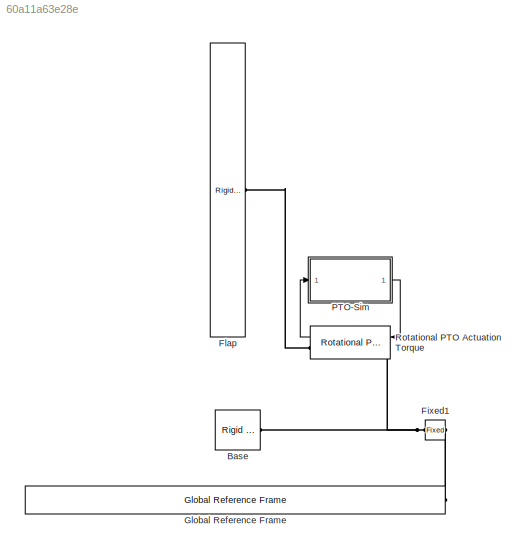
MODEL slx_60a11a63e28e
KIND model
CONFIG AbsTol = auto
CONFIG EnableMultiTasking = on
CONFIG FixedStep = 0.01
CONFIG MaxStep = 0.01
CONFIG MinStep = auto
CONFIG RelTol = 1e-3
CONFIG SampleTimeConstraint = Unconstrained
CONFIG SolverName = ode4
CONFIG StartTime = 0
CONFIG StopTime = 400
BLOCK [Reference] Base  REF=WECSim_Lib_Body_Elements/Rigid Body
  AttributesFormatString = %<body>
  Ports = [0, 0, 0, 0, 0, 0, 1]
  SourceBlock = WECSim_Lib_Body_Elements/Rigid Body
  SourceType = Rigid Body
BLOCK [Reference] Fixed1  REF=WECSim_Lib_Constraints/Fixed
  AttributesFormatString = %<constraint>
  NameLocation = top
  Ports = [0, 0, 0, 0, 0, 1, 1]
  SourceBlock = WECSim_Lib_Constraints/Fixed
  SourceType = Constraints
BLOCK [Reference] Flap  REF=WECSim_Lib_Body_Elements/Rigid Body
  AttributesFormatString = %<body>
  Ports = [0, 0, 0, 0, 0, 0, 1]
  SourceBlock = WECSim_Lib_Body_Elements/Rigid Body
  SourceType = Rigid Body
BLOCK [Reference] Global Reference Frame  REF=WECSim_Lib_Frames/Global Reference Frame
  Ports = [0, 0, 0, 0, 0, 0, 1]
  SourceBlock = WECSim_Lib_Frames/Global Reference Frame
  SourceType = Frames
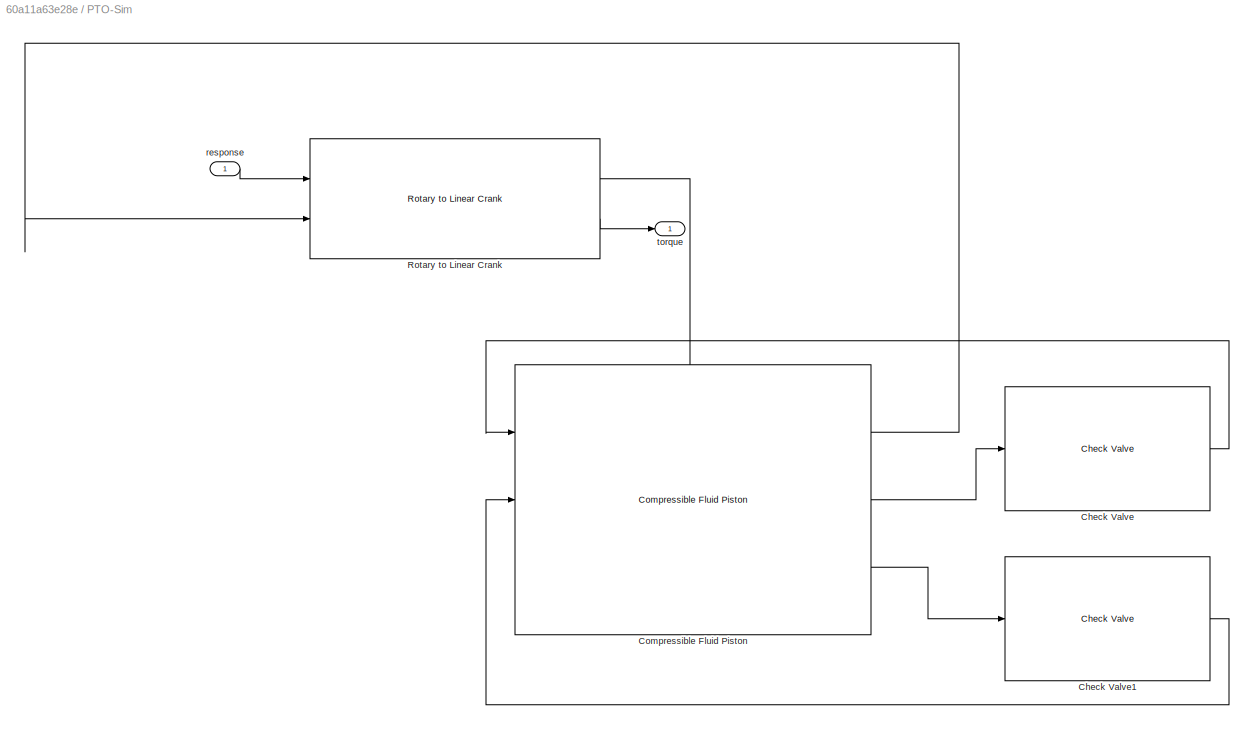
BLOCK [SubSystem] PTO-Sim
  NameLocation = top
  Ports = [1, 1]
  RequestExecContextInheritance = off
BLOCK [Reference] PTO-Sim/Check Valve  REF=WECSim_Lib_PTOSim/Hydraulic/Check Valve
  Ports = [1, 1]
  SourceBlock = WECSim_Lib_PTOSim/Hydraulic/Check Valve
BLOCK [Reference] PTO-Sim/Check Valve1  REF=WECSim_Lib_PTOSim/Hydraulic/Check Valve
  Ports = [1, 1]
  SourceBlock = WECSim_Lib_PTOSim/Hydraulic/Check Valve
BLOCK [Reference] PTO-Sim/Compressible Fluid Piston  REF=WECSim_Lib_PTOSim/Hydraulic/Compressible Fluid Piston
  Ports = [3, 3]
  SourceBlock = WECSim_Lib_PTOSim/Hydraulic/Compressible Fluid Piston
BLOCK [Reference] PTO-Sim/Rotary to Linear Crank  REF=WECSim_Lib_PTOSim/Motion Conversion/Rotary to Linear
Crank
  Ports = [2, 2]
  SourceBlock = WECSim_Lib_PTOSim/Motion Conversion/Rotary to Linear\nCrank
BLOCK [Inport] PTO-Sim/response
BLOCK [Outport] PTO-Sim/torque
  VectorParamsAs1DForOutWhenUnconnected = off
BLOCK [Reference] Rotational PTO Actuation Torque  REF=WECSim_Lib_PTOs/Rotational PTO
Actuation Torque
  AttributesFormatString = %<pto>
  Ports = [1, 1, 0, 0, 0, 1, 1]
  SourceBlock = WECSim_Lib_PTOs/Rotational PTO\nActuation Torque
  SourceType = PTO
LINE PTO-Sim/Check Valve1:1 -> PTO-Sim/Compressible Fluid Piston:2
LINE PTO-Sim/Check Valve:1 -> PTO-Sim/Compressible Fluid Piston:1
LINE PTO-Sim/Compressible Fluid Piston:1 -> PTO-Sim/Rotary to Linear Crank:2
LINE PTO-Sim/Compressible Fluid Piston:2 -> PTO-Sim/Check Valve:1
LINE PTO-Sim/Compressible Fluid Piston:3 -> PTO-Sim/Check Valve1:1
LINE PTO-Sim/Rotary to Linear Crank:1 -> PTO-Sim/Compressible Fluid Piston:3
LINE PTO-Sim/Rotary to Linear Crank:2 -> PTO-Sim/torque:1
LINE PTO-Sim/response:1 -> PTO-Sim/Rotary to Linear Crank:1
LINE PTO-Sim:1 -> Rotational PTO Actuation Torque:1
LINE Rotational PTO Actuation Torque:1 -> PTO-Sim:1
PNET net1: Base:RConn1 -- Fixed1:RConn1 -- Rotational PTO Actuation Torque:LConn1
PLINE Fixed1:LConn1 -- Global Reference Frame:RConn1
PLINE Flap:RConn1 -- Rotational PTO Actuation Torque:RConn1
note: PNET lines group multi-terminal physical nets as a canonical sorted terminal list (undirected conserving connections); 2-terminal nets keep the pairwise PLINE form
